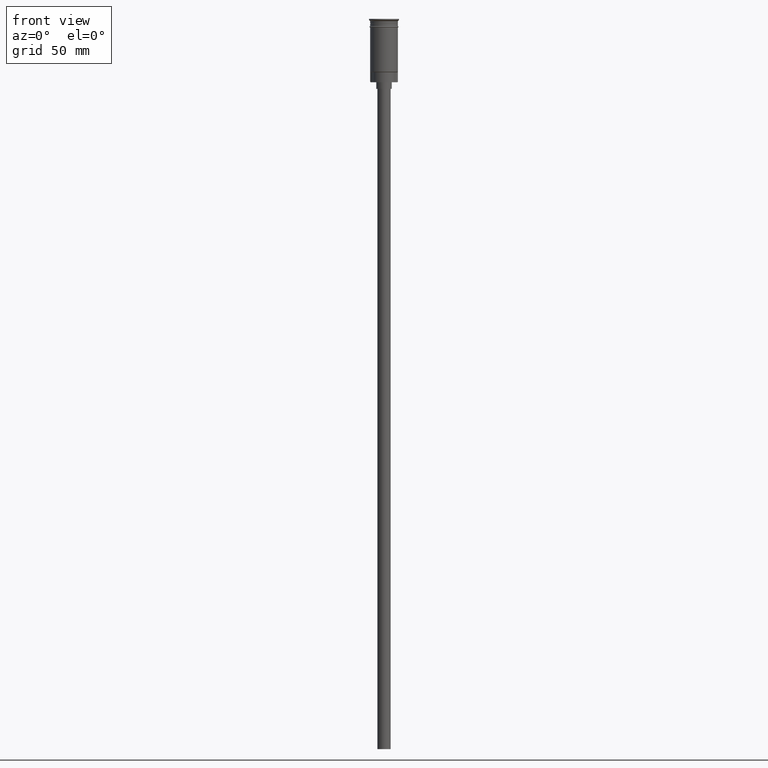
[diagram: clean part render]
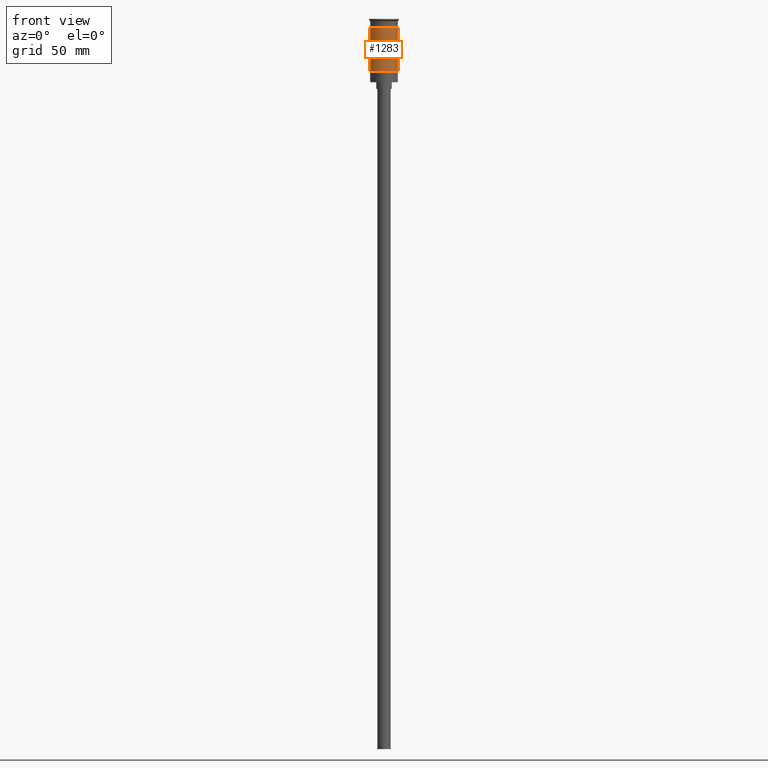
[diagram: same view with one face highlighted and labeled with its STEP entity id]
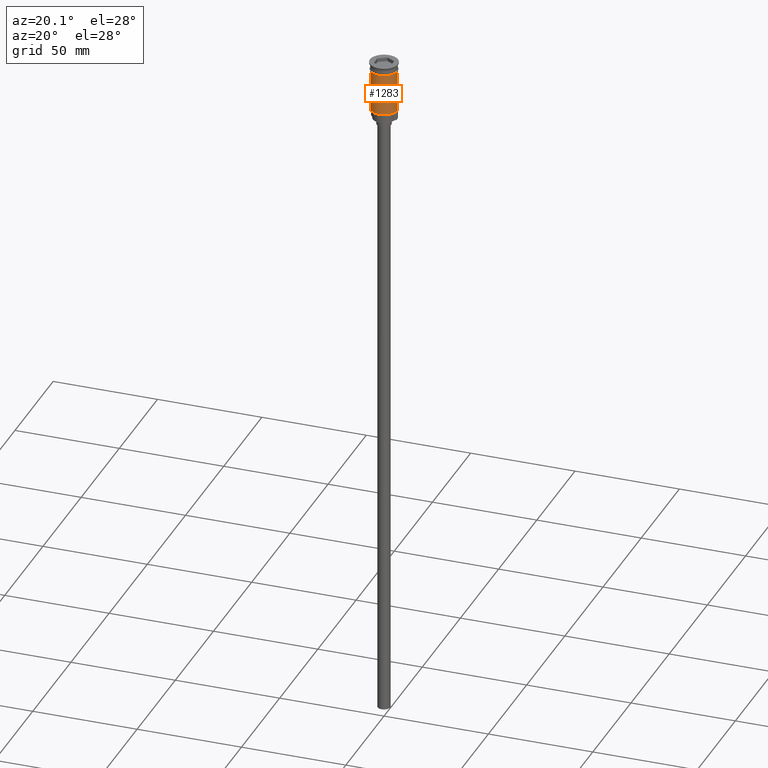
[diagram: same view with one face highlighted and labeled with its STEP entity id]
A machine part, front view. The second image highlights one B-rep face of the part: STEP entity #1283.
A second angle (auxiliary view) of the same face is appended — the face is thin or edge-on in the first view.
In plain terms, the highlighted cylindrical surface (edge-blend (fillet) strip) has radius 6.25 mm, axis along (-0, -0, 1).
Its self-contained STEP definition (entity closure, byte-faithful):
#2 = CARTESIAN_POINT ( 'NONE',  ( 6.249999999999997335, 7.654042494670953662E-16, -23.80000000000003624 ) ) ;
#74 = DIRECTION ( 'NONE',  ( -0.000000000000000000, -0.000000000000000000, 1.000000000000000000 ) ) ;
#177 = EDGE_CURVE ( 'NONE', #625, #805, #1379, .T. ) ;
#185 = ORIENTED_EDGE ( 'NONE', *, *, #1595, .F. ) ;
#205 = DIRECTION ( 'NONE',  ( -0.000000000000000000, -0.000000000000000000, 1.000000000000000000 ) ) ;
#252 = LINE ( 'NONE', #1303, #972 ) ;
#265 = VERTEX_POINT ( 'NONE', #1353 ) ;
#310 = CIRCLE ( 'NONE', #1117, 6.250000000000000000 ) ;
#318 = DIRECTION ( 'NONE',  ( -1.000000000000000000, 0.000000000000000000, 0.000000000000000000 ) ) ;
#356 = DIRECTION ( 'NONE',  ( -0.000000000000000000, -0.000000000000000000, 1.000000000000000000 ) ) ;
#364 = LINE ( 'NONE', #864, #520 ) ;
#407 = EDGE_CURVE ( 'NONE', #805, #612, #364, .T. ) ;
#416 = EDGE_CURVE ( 'NONE', #625, #265, #252, .T. ) ;
#482 = DIRECTION ( 'NONE',  ( 1.000000000000000000, 0.000000000000000000, 0.000000000000000000 ) ) ;
#520 = VECTOR ( 'NONE', #1364, 1000.000000000000000 ) ;
#612 = VERTEX_POINT ( 'NONE', #962 ) ;
#625 = VERTEX_POINT ( 'NONE', #1451 ) ;
#805 = VERTEX_POINT ( 'NONE', #2 ) ;
#834 = FACE_OUTER_BOUND ( 'NONE', #909, .T. ) ;
#864 = CARTESIAN_POINT ( 'NONE',  ( 6.249999999999997335, 0.000000000000000000, 0.000000000000000000 ) ) ;
#909 = EDGE_LOOP ( 'NONE', ( #1339, #1129, #1106, #185 ) ) ;
#956 = CARTESIAN_POINT ( 'NONE',  ( 0.000000000000000000, 0.000000000000000000, -23.80000000000003624 ) ) ;
#962 = CARTESIAN_POINT ( 'NONE',  ( 6.250000000000000000, 0.000000000000000000, -3.799999999999998490 ) ) ;
#972 = VECTOR ( 'NONE', #205, 1000.000000000000000 ) ;
#1070 = CARTESIAN_POINT ( 'NONE',  ( 0.000000000000000000, 0.000000000000000000, -3.799999999999998490 ) ) ;
#1106 = ORIENTED_EDGE ( 'NONE', *, *, #407, .T. ) ;
#1117 = AXIS2_PLACEMENT_3D ( 'NONE', #1070, #74, #1545 ) ;
#1129 = ORIENTED_EDGE ( 'NONE', *, *, #177, .T. ) ;
#1214 = DIRECTION ( 'NONE',  ( -0.000000000000000000, -0.000000000000000000, 1.000000000000000000 ) ) ;
#1281 = AXIS2_PLACEMENT_3D ( 'NONE', #956, #1214, #318 ) ;
#1283 = ADVANCED_FACE ( 'NONE', ( #834 ), #1461, .T. ) ;
#1303 = CARTESIAN_POINT ( 'NONE',  ( -6.249999999999997335, 7.654042494670954648E-16, 0.000000000000000000 ) ) ;
#1339 = ORIENTED_EDGE ( 'NONE', *, *, #416, .F. ) ;
#1351 = CARTESIAN_POINT ( 'NONE',  ( 0.000000000000000000, 0.000000000000000000, 0.000000000000000000 ) ) ;
#1353 = CARTESIAN_POINT ( 'NONE',  ( -6.250000000000000000, 7.654042494670958593E-16, -3.799999999999998490 ) ) ;
#1364 = DIRECTION ( 'NONE',  ( -0.000000000000000000, -0.000000000000000000, 1.000000000000000000 ) ) ;
#1379 = CIRCLE ( 'NONE', #1281, 6.249999999999997335 ) ;
#1451 = CARTESIAN_POINT ( 'NONE',  ( -6.249999999999995559, 0.000000000000000000, -23.80000000000003624 ) ) ;
#1461 = CYLINDRICAL_SURFACE ( 'NONE', #1535, 6.249999999999997335 ) ;
#1535 = AXIS2_PLACEMENT_3D ( 'NONE', #1351, #356, #482 ) ;
#1545 = DIRECTION ( 'NONE',  ( 1.000000000000000000, 0.000000000000000000, 0.000000000000000000 ) ) ;
#1595 = EDGE_CURVE ( 'NONE', #265, #612, #310, .T. ) ;